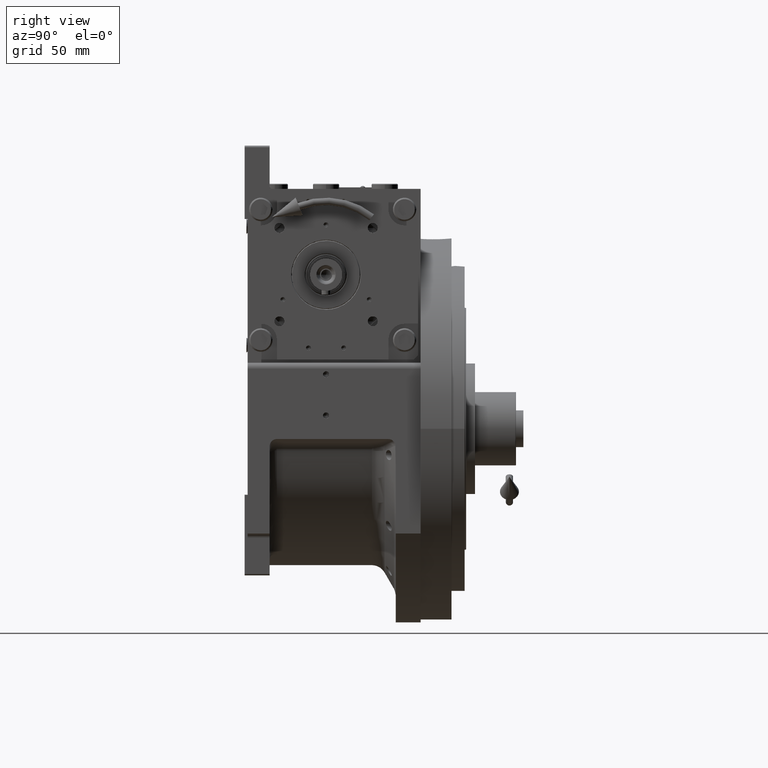
[diagram: clean part render]
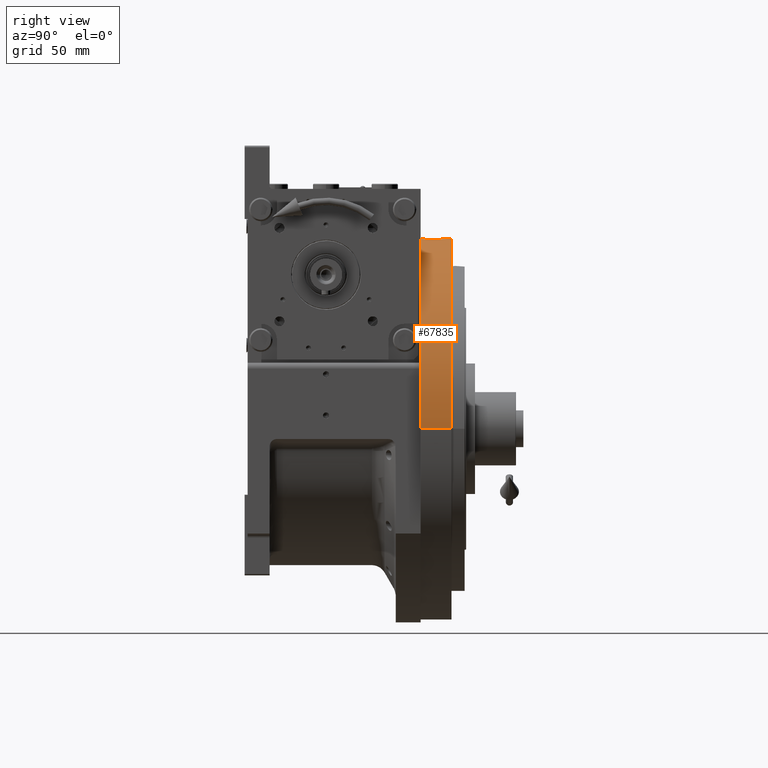
[diagram: same view with one face highlighted and labeled with its STEP entity id]
A machine part, right view. The second image highlights one B-rep face of the part: STEP entity #67835.
In plain terms, the highlighted cylindrical surface (partial cylindrical patch) has radius 130 mm, axis along (0, 1, 0).
Its self-contained STEP definition (entity closure, byte-faithful):
#3050 = CARTESIAN_POINT ( 'NONE',  ( 14.94595743082014749, -129.1380331484297415, 7.002816601526308915 ) ) ;
#4179 = VERTEX_POINT ( 'NONE', #46237 ) ;
#5523 = CARTESIAN_POINT ( 'NONE',  ( 13.07324366582693820, -129.3410676526084728, 15.86318242358186126 ) ) ;
#8017 = CARTESIAN_POINT ( 'NONE',  ( -3.375077994860475252E-14, -8.312794896880859596E-15, 21.00000000000000000 ) ) ;
#8177 = CYLINDRICAL_SURFACE ( 'NONE', #59577, 130.0000000000000000 ) ;
#8380 = VERTEX_POINT ( 'NONE', #16684 ) ;
#8894 = CARTESIAN_POINT ( 'NONE',  ( 0.000000000000000000, 0.000000000000000000, 0.000000000000000000 ) ) ;
#10995 = CIRCLE ( 'NONE', #27014, 130.0000000000000000 ) ;
#11236 = CARTESIAN_POINT ( 'NONE',  ( 12.91859614308669002, -129.3566266761629038, 16.13025130095697079 ) ) ;
#11708 = EDGE_CURVE ( 'NONE', #8380, #60543, #27048, .T. ) ;
#12365 = EDGE_CURVE ( 'NONE', #45061, #4179, #23327, .T. ) ;
#12504 = CARTESIAN_POINT ( 'NONE',  ( 15.00143415950958925, -129.1317570393279937, 8.500000652961842817 ) ) ;
#12839 = DIRECTION ( 'NONE',  ( 0.000000000000000000, 0.000000000000000000, 1.000000000000000000 ) ) ;
#15416 = EDGE_LOOP ( 'NONE', ( #23100, #41141, #53503, #67992, #67398 ) ) ;
#15840 = CIRCLE ( 'NONE', #34116, 130.0000000000000568 ) ;
#16684 = CARTESIAN_POINT ( 'NONE',  ( 8.291561975888500413, -129.7353074532911990, 21.00000000000000000 ) ) ;
#16966 = CARTESIAN_POINT ( 'NONE',  ( 14.24404532743190366, -129.2176411269178686, 13.36834638372409323 ) ) ;
#17945 = DIRECTION ( 'NONE',  ( 0.000000000000000000, 0.000000000000000000, 1.000000000000000000 ) ) ;
#18296 = CARTESIAN_POINT ( 'NONE',  ( 130.0000000000000000, 0.000000000000000000, 0.000000000000000000 ) ) ;
#19291 = FACE_OUTER_BOUND ( 'NONE', #15416, .T. ) ;
#23100 = ORIENTED_EDGE ( 'NONE', *, *, #32348, .F. ) ;
#23327 = LINE ( 'NONE', #18296, #41239 ) ;
#23734 = EDGE_CURVE ( 'NONE', #60543, #42150, #60896, .T. ) ;
#23852 = CARTESIAN_POINT ( 'NONE',  ( 14.77442854172701736, -129.1577313733390326, 5.881386559567233441 ) ) ;
#27014 = AXIS2_PLACEMENT_3D ( 'NONE', #41596, #69214, #64549 ) ;
#27048 = B_SPLINE_CURVE_WITH_KNOTS ( 'NONE', 3,
 ( #44527, #54583, #48855, #55271, #27716, #54240, #55621, #11236, #5523, #66049, #16966, #44189, #27370, #38774, #33776, #49197 ),
 .UNSPECIFIED., .F., .F.,
 ( 4, 2, 2, 2, 2, 2, 2, 4 ),
 ( 0.000000000000000000, 0.1551246848598826777, 0.2326870272898237668, 0.2714681985047942558, 0.3102493697197646894, 0.4653740545796473116, 0.5429363970095887337, 0.6204987394395300448 ),
 .UNSPECIFIED. ) ;
#27370 = CARTESIAN_POINT ( 'NONE',  ( 14.81098761578837575, -129.1535543552177501, 10.95117746684835502 ) ) ;
#27716 = CARTESIAN_POINT ( 'NONE',  ( 11.88456506170209792, -129.4561131545358990, 17.67224144553652110 ) ) ;
#29176 = DIRECTION ( 'NONE',  ( 0.06378124596837327076, -0.9979639034868555969, 0.000000000000000000 ) ) ;
#29527 = DIRECTION ( 'NONE',  ( 0.000000000000000000, 0.000000000000000000, 1.000000000000000000 ) ) ;
#30545 = CARTESIAN_POINT ( 'NONE',  ( 130.0000000000000000, 0.000000000000000000, 0.000000000000000000 ) ) ;
#30622 = CARTESIAN_POINT ( 'NONE',  ( 12.35920709430829945, -129.4111664424673904, 5.921189464667499248E-16 ) ) ;
#30966 = CARTESIAN_POINT ( 'NONE',  ( 13.88016161712184449, -129.2576524786445873, 2.615587219645348682 ) ) ;
#32348 = EDGE_CURVE ( 'NONE', #45061, #42150, #10995, .T. ) ;
#33776 = CARTESIAN_POINT ( 'NONE',  ( 15.00273082495796295, -129.1313984583649699, 9.112253509943727181 ) ) ;
#34116 = AXIS2_PLACEMENT_3D ( 'NONE', #8017, #29527, #29176 ) ;
#38774 = CARTESIAN_POINT ( 'NONE',  ( 14.96433192035169313, -129.1358769936486510, 9.724939439827963383 ) ) ;
#39904 = CARTESIAN_POINT ( 'NONE',  ( 12.35920709430829945, -129.4111664424673904, 5.921189464667499248E-16 ) ) ;
#41141 = ORIENTED_EDGE ( 'NONE', *, *, #12365, .T. ) ;
#41239 = VECTOR ( 'NONE', #17945, 1000.000000000000000 ) ;
#41596 = CARTESIAN_POINT ( 'NONE',  ( 2.309263891220324973E-14, 2.248201624865939628E-15, 0.000000000000000000 ) ) ;
#41698 = CARTESIAN_POINT ( 'NONE',  ( 14.70246210448596536, -129.1659586437997973, 5.505672059807589669 ) ) ;
#42150 = VERTEX_POINT ( 'NONE', #39904 ) ;
#44189 = CARTESIAN_POINT ( 'NONE',  ( 14.69519134197241428, -129.1668465700333854, 11.56890624955277502 ) ) ;
#44527 = CARTESIAN_POINT ( 'NONE',  ( 8.291561975888500413, -129.7353074532911990, 21.00000000000000000 ) ) ;
#45061 = VERTEX_POINT ( 'NONE', #30545 ) ;
#46237 = CARTESIAN_POINT ( 'NONE',  ( 130.0000000000000000, 0.000000000000000000, 21.00000000000000000 ) ) ;
#47733 = EDGE_CURVE ( 'NONE', #8380, #4179, #15840, .T. ) ;
#48855 = CARTESIAN_POINT ( 'NONE',  ( 10.26693376510338851, -129.5965726322303340, 19.50460375044386296 ) ) ;
#49197 = CARTESIAN_POINT ( 'NONE',  ( 15.00143415950958925, -129.1317570393279937, 8.500000652961842817 ) ) ;
#51755 = CARTESIAN_POINT ( 'NONE',  ( 15.00303650363017560, -129.1313629437071029, 7.751084631570253514 ) ) ;
#52116 = CARTESIAN_POINT ( 'NONE',  ( 14.43523386522177354, -129.1961164235667638, 4.405705243537026305 ) ) ;
#53503 = ORIENTED_EDGE ( 'NONE', *, *, #47733, .F. ) ;
#54240 = CARTESIAN_POINT ( 'NONE',  ( 12.41908694424952664, -129.4055574904634227, 16.91706435848113443 ) ) ;
#54583 = CARTESIAN_POINT ( 'NONE',  ( 9.334393424940820694, -129.6686586607615936, 20.30414280681441497 ) ) ;
#55271 = CARTESIAN_POINT ( 'NONE',  ( 11.50077597060475121, -129.4909361454053851, 18.14977237111053654 ) ) ;
#55621 = CARTESIAN_POINT ( 'NONE',  ( 12.59160070162315925, -129.3888657617618492, 16.65709176422864246 ) ) ;
#57840 = CARTESIAN_POINT ( 'NONE',  ( 14.53308137784626020, -129.1851261174077194, 4.768908048702474645 ) ) ;
#57965 = DIRECTION ( 'NONE',  ( 1.000000000000000000, 0.000000000000000000, 0.000000000000000000 ) ) ;
#59577 = AXIS2_PLACEMENT_3D ( 'NONE', #8894, #12839, #57965 ) ;
#60543 = VERTEX_POINT ( 'NONE', #12504 ) ;
#60896 = B_SPLINE_CURVE_WITH_KNOTS ( 'NONE', 3,
 ( #62142, #51755, #3050, #23852, #41698, #57840, #52116, #30966, #68581, #30622 ),
 .UNSPECIFIED., .F., .F.,
 ( 4, 2, 2, 2, 4 ),
 ( 0.6204987394395300448, 0.7153740545796475336, 0.7628117121497062225, 0.8102493697197649114, 1.000000000000000000 ),
 .UNSPECIFIED. ) ;
#62142 = CARTESIAN_POINT ( 'NONE',  ( 15.00143415950958925, -129.1317570393279937, 8.500000652961842817 ) ) ;
#64549 = DIRECTION ( 'NONE',  ( -0.09507082380237159847, -0.9954705110959030101, 0.000000000000000000 ) ) ;
#66049 = CARTESIAN_POINT ( 'NONE',  ( 13.80227294988460685, -129.2665500615710243, 14.50959480800996104 ) ) ;
#67398 = ORIENTED_EDGE ( 'NONE', *, *, #23734, .T. ) ;
#67835 = ADVANCED_FACE ( 'NONE', ( #19291 ), #8177, .T. ) ;
#67992 = ORIENTED_EDGE ( 'NONE', *, *, #11708, .T. ) ;
#68581 = CARTESIAN_POINT ( 'NONE',  ( 13.22546247504188521, -129.3284361036461405, 1.266360006725786524 ) ) ;
#69214 = DIRECTION ( 'NONE',  ( 0.000000000000000000, 0.000000000000000000, -1.000000000000000000 ) ) ;